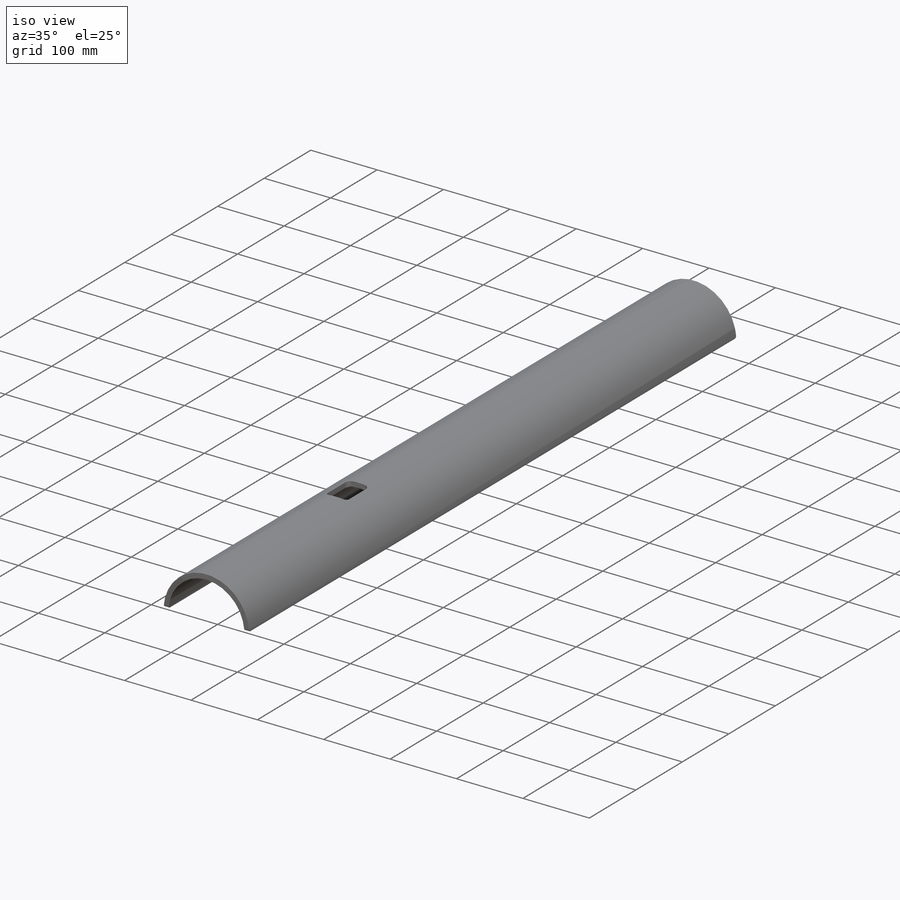
[diagram: iso view]
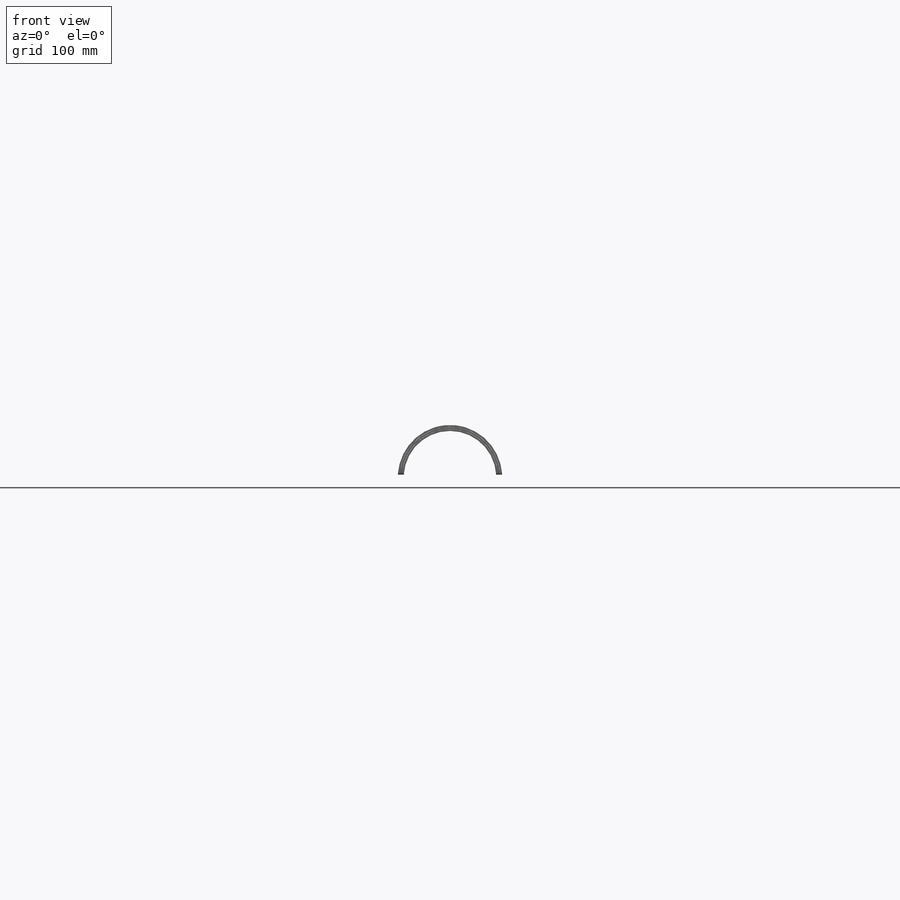
[diagram: front view]
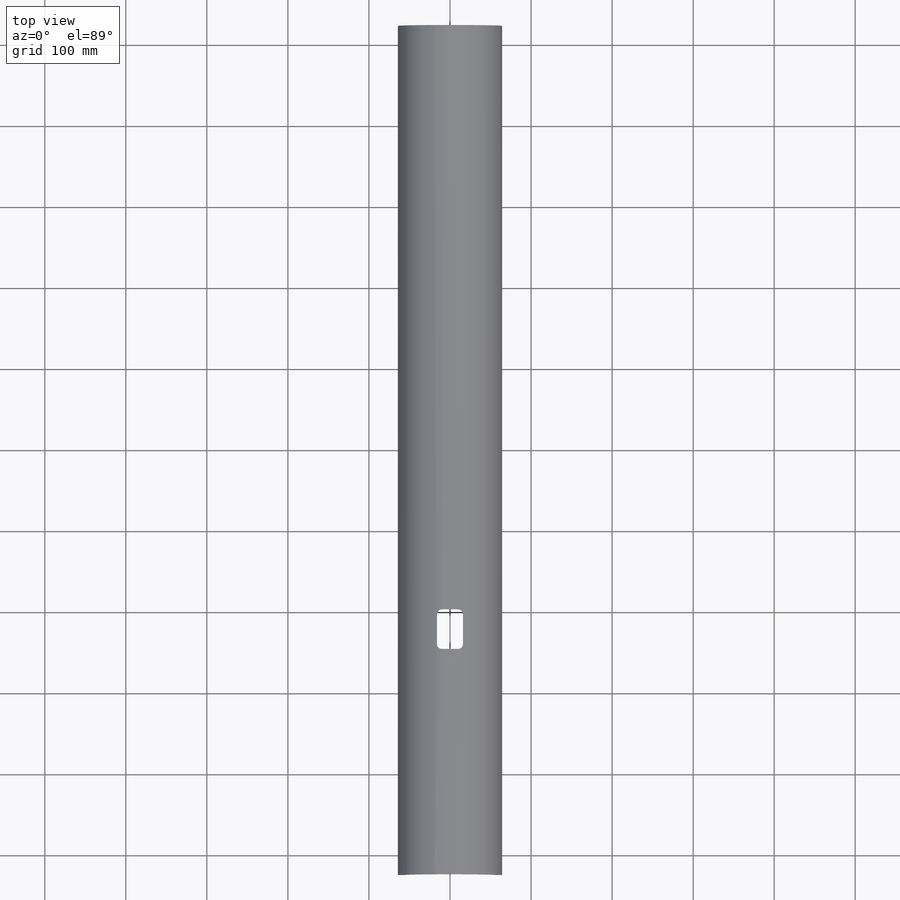
[diagram: top view]
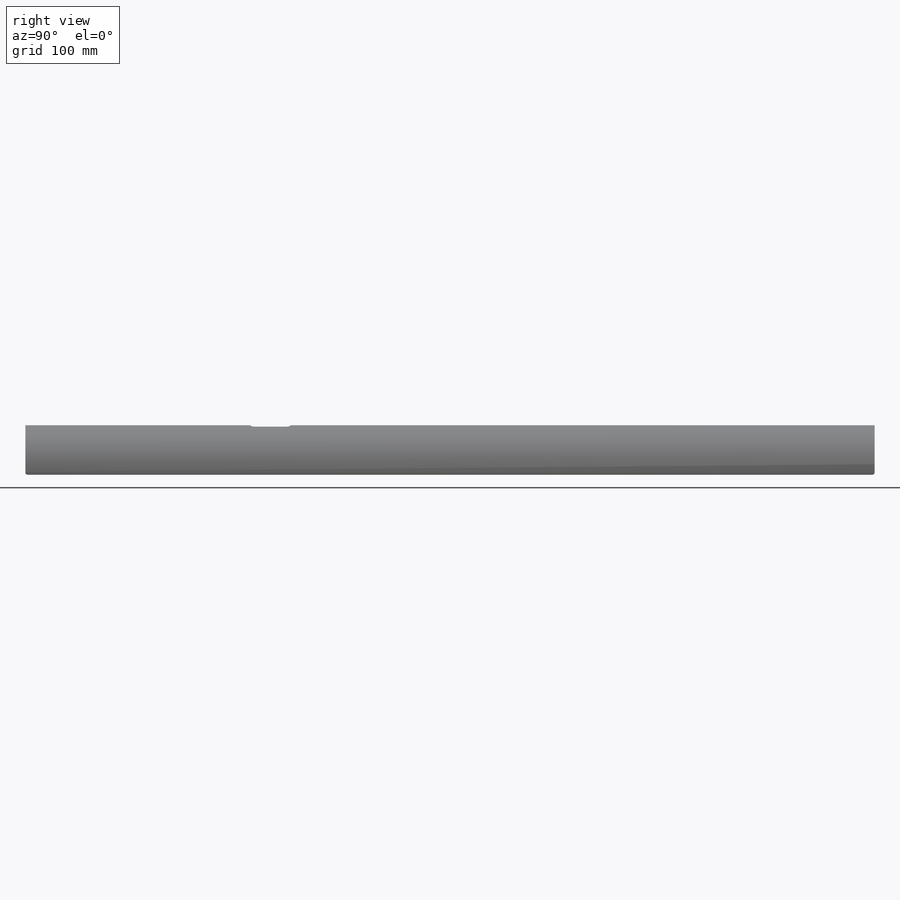
[diagram: right view]
SOLIDWORKS PART (.sldprt)
format: sldprt  version: not decoded by parser v0  size: 317,440 bytes
history: native  units: mm
features: sketch x4, fillet x3, material x1, cut_extrude x1 (+11 scaffold rows collapsed)
feature tree (20):
  scaffold x11  (default folders/planes/origin — collapsed)
  material  "insulation"
  sketch  "Sketch1"  dims[c1.D1=~110.429725mm c1.D2=57.0mm c2.D1=3.0mm c3.D1=1048.0mm c3.D5=2.3mm c3.D6=1.0mm c3.D7=5.0mm]
  sketch  "Sketch2"  dims[c1.D1=59.52mm c2.D1=1048.0mm c2.D5=2.3mm c2.D6=1.0mm c2.D7=5.0mm]
  sketch  "Sketch3"  dims[c1.D1=62.04mm c2.D1=1048.0mm c2.D5=2.3mm c2.D6=1.0mm c2.D7=5.0mm]
  fillet  "Fillet1"  Radius=3mm
  fillet  "Fillet2"  Radius=3mm
  fillet  "Fillet3"  Radius=3mm
  sketch  "Sketch4"  dims[D4=~6.001586mm D1=221.5mm D2=49.0mm D3=32.0mm]
  cut_extrude  "Cut-Extrude1"  [1 undecoded]
decode coverage: 7 of 8 modeling features carry decoded parameters
note: ~ marks probable driven/reference dimensions
note: 1 parameter value undecoded
note: suppression state not decoded; provenance and decode notes live in map.json
